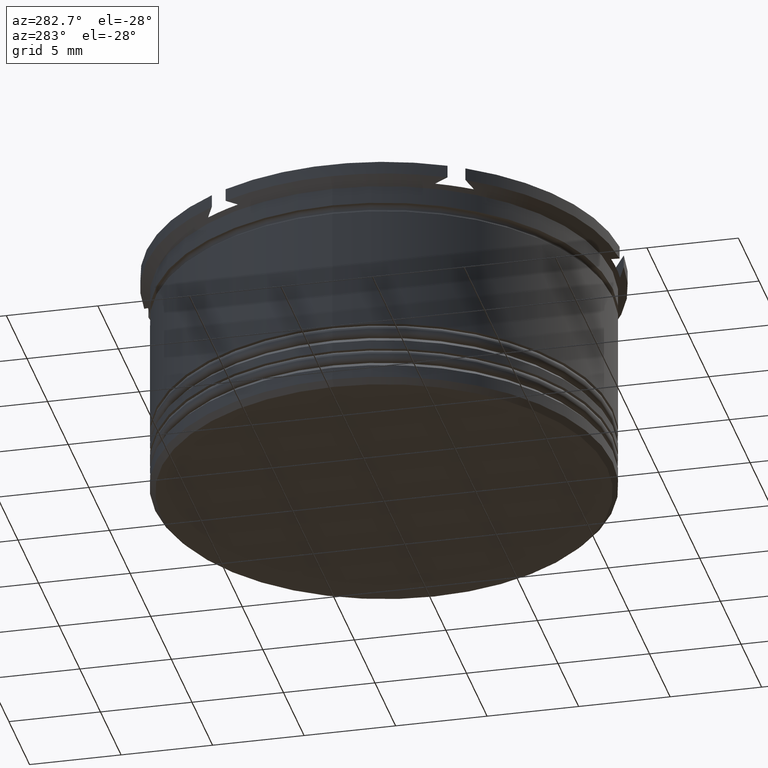
[diagram: clean part render]
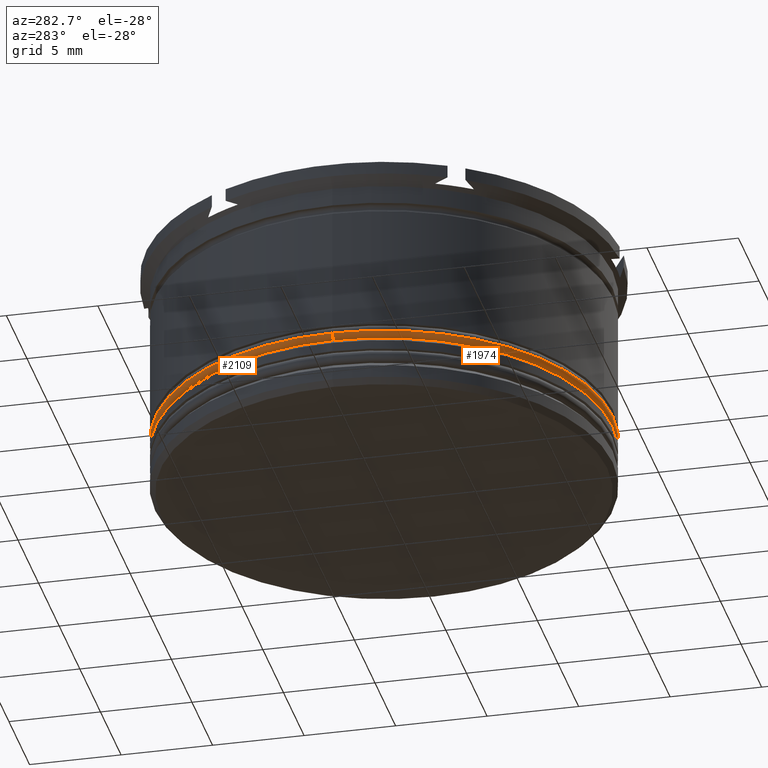
[diagram: same view with one multi-face feature highlighted, each face labeled with its STEP entity id]
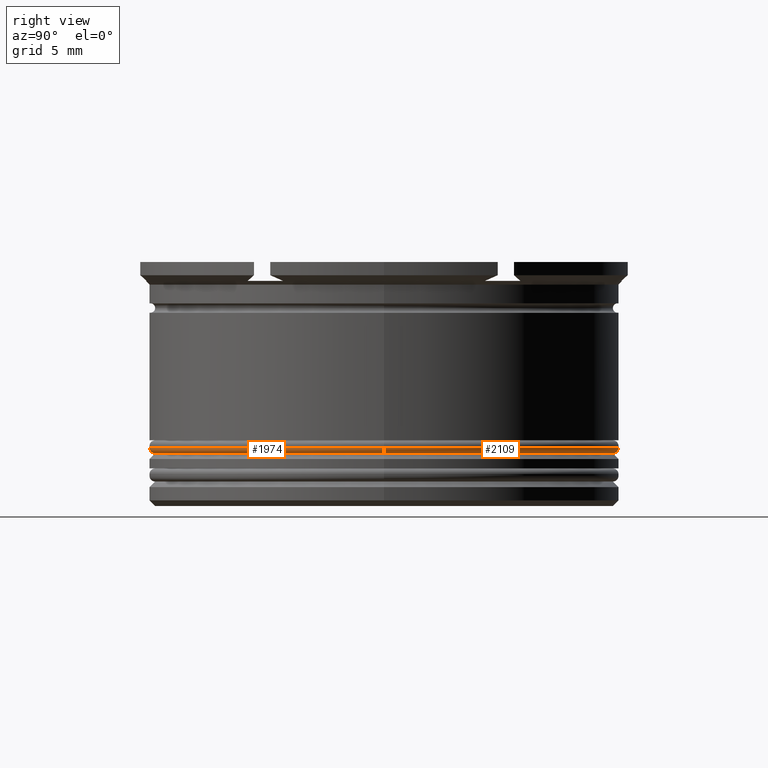
[diagram: same view with one multi-face feature highlighted, each face labeled with its STEP entity id]
A machine part, auxiliary view. The highlighted faces form ONE feature: a constant-radius fillet chain: 2 tangent blend faces with common blend radius 0.3 mm. The faces share edges in the B-rep.
A second angle (right view) of the same feature is appended — it is thin or edge-on in the first view.
Their STEP definitions:
[1] entity #1974 (Torus):
#22 = VERTEX_POINT ( 'NONE', #798 ) ;
#86 = EDGE_CURVE ( 'NONE', #2276, #1643, #122, .T. ) ;
#113 = DIRECTION ( 'NONE',  ( 1.224646799147353207E-16, 1.000000000000000000, -0.000000000000000000 ) ) ;
#122 = CIRCLE ( 'NONE', #1466, 0.2999999999999999334 ) ;
#224 = EDGE_CURVE ( 'NONE', #2276, #22, #353, .T. ) ;
#272 = CARTESIAN_POINT ( 'NONE',  ( 0.000000000000000000, 0.000000000000000000, -10.20000000000000817 ) ) ;
#353 = CIRCLE ( 'NONE', #2012, 12.20000000000000107 ) ;
#400 = EDGE_CURVE ( 'NONE', #536, #1643, #1593, .T. ) ;
#455 = DIRECTION ( 'NONE',  ( 1.000000000000000000, 0.000000000000000000, 0.000000000000000000 ) ) ;
#470 = ORIENTED_EDGE ( 'NONE', *, *, #489, .F. ) ;
#489 = EDGE_CURVE ( 'NONE', #22, #536, #1512, .T. ) ;
#512 = AXIS2_PLACEMENT_3D ( 'NONE', #1986, #113, #853 ) ;
#536 = VERTEX_POINT ( 'NONE', #1649 ) ;
#537 = DIRECTION ( 'NONE',  ( 0.000000000000000000, 0.000000000000000000, -1.000000000000000000 ) ) ;
#556 = FACE_OUTER_BOUND ( 'NONE', #2059, .T. ) ;
#621 = ORIENTED_EDGE ( 'NONE', *, *, #86, .T. ) ;
#701 = CARTESIAN_POINT ( 'NONE',  ( 12.20000000000000107, 0.000000000000000000, -10.20000000000000817 ) ) ;
#770 = DIRECTION ( 'NONE',  ( 0.000000000000000000, 0.000000000000000000, 1.000000000000000000 ) ) ;
#798 = CARTESIAN_POINT ( 'NONE',  ( -12.20000000000000107, 1.512438796946981289E-15, -10.20000000000000817 ) ) ;
#853 = DIRECTION ( 'NONE',  ( -1.000000000000000000, 1.224646799147353207E-16, 0.000000000000000000 ) ) ;
#916 = CARTESIAN_POINT ( 'NONE',  ( 12.20000000000000107, 0.000000000000000000, -9.900000000000005684 ) ) ;
#1032 = CARTESIAN_POINT ( 'NONE',  ( 12.50000000000000000, 0.000000000000000000, -9.900000000000005684 ) ) ;
#1173 = DIRECTION ( 'NONE',  ( -0.000000000000000000, -0.000000000000000000, -1.000000000000000000 ) ) ;
#1223 = CARTESIAN_POINT ( 'NONE',  ( 0.000000000000000000, 0.000000000000000000, -9.900000000000005684 ) ) ;
#1231 = DIRECTION ( 'NONE',  ( 0.000000000000000000, 0.000000000000000000, 1.000000000000000000 ) ) ;
#1281 = AXIS2_PLACEMENT_3D ( 'NONE', #1693, #770, #2230 ) ;
#1325 = ORIENTED_EDGE ( 'NONE', *, *, #224, .F. ) ;
#1466 = AXIS2_PLACEMENT_3D ( 'NONE', #916, #2186, #537 ) ;
#1512 = CIRCLE ( 'NONE', #512, 0.2999999999999999334 ) ;
#1593 = CIRCLE ( 'NONE', #2283, 12.50000000000000000 ) ;
#1632 = TOROIDAL_SURFACE ( 'NONE', #1281, 12.20000000000000107, 0.2999999999999999889 ) ;
#1643 = VERTEX_POINT ( 'NONE', #1032 ) ;
#1649 = CARTESIAN_POINT ( 'NONE',  ( -12.50000000000000000, 1.530808498934191521E-15, -9.900000000000005684 ) ) ;
#1693 = CARTESIAN_POINT ( 'NONE',  ( 0.000000000000000000, 0.000000000000000000, -9.900000000000005684 ) ) ;
#1966 = DIRECTION ( 'NONE',  ( 1.000000000000000000, 0.000000000000000000, 0.000000000000000000 ) ) ;
#1974 = ADVANCED_FACE ( 'NONE', ( #556 ), #1632, .T. ) ;
#1986 = CARTESIAN_POINT ( 'NONE',  ( -12.20000000000000107, 1.494069094959771056E-15, -9.900000000000005684 ) ) ;
#2012 = AXIS2_PLACEMENT_3D ( 'NONE', #272, #1173, #455 ) ;
#2059 = EDGE_LOOP ( 'NONE', ( #470, #1325, #621, #2358 ) ) ;
#2186 = DIRECTION ( 'NONE',  ( 0.000000000000000000, -1.000000000000000000, 0.000000000000000000 ) ) ;
#2230 = DIRECTION ( 'NONE',  ( 1.000000000000000000, 0.000000000000000000, 0.000000000000000000 ) ) ;
#2276 = VERTEX_POINT ( 'NONE', #701 ) ;
#2283 = AXIS2_PLACEMENT_3D ( 'NONE', #1223, #1231, #1966 ) ;
#2358 = ORIENTED_EDGE ( 'NONE', *, *, #400, .F. ) ;
[2] entity #2109 (Torus):
#22 = VERTEX_POINT ( 'NONE', #798 ) ;
#86 = EDGE_CURVE ( 'NONE', #2276, #1643, #122, .T. ) ;
#113 = DIRECTION ( 'NONE',  ( 1.224646799147353207E-16, 1.000000000000000000, -0.000000000000000000 ) ) ;
#122 = CIRCLE ( 'NONE', #1466, 0.2999999999999999334 ) ;
#129 = AXIS2_PLACEMENT_3D ( 'NONE', #1547, #452, #1525 ) ;
#313 = CARTESIAN_POINT ( 'NONE',  ( 0.000000000000000000, 0.000000000000000000, -10.20000000000000817 ) ) ;
#452 = DIRECTION ( 'NONE',  ( 0.000000000000000000, 0.000000000000000000, 1.000000000000000000 ) ) ;
#489 = EDGE_CURVE ( 'NONE', #22, #536, #1512, .T. ) ;
#512 = AXIS2_PLACEMENT_3D ( 'NONE', #1986, #113, #853 ) ;
#536 = VERTEX_POINT ( 'NONE', #1649 ) ;
#537 = DIRECTION ( 'NONE',  ( 0.000000000000000000, 0.000000000000000000, -1.000000000000000000 ) ) ;
#559 = ORIENTED_EDGE ( 'NONE', *, *, #661, .F. ) ;
#589 = FACE_OUTER_BOUND ( 'NONE', #1428, .T. ) ;
#661 = EDGE_CURVE ( 'NONE', #1643, #536, #1860, .T. ) ;
#701 = CARTESIAN_POINT ( 'NONE',  ( 12.20000000000000107, 0.000000000000000000, -10.20000000000000817 ) ) ;
#750 = AXIS2_PLACEMENT_3D ( 'NONE', #1529, #1886, #2098 ) ;
#798 = CARTESIAN_POINT ( 'NONE',  ( -12.20000000000000107, 1.512438796946981289E-15, -10.20000000000000817 ) ) ;
#849 = DIRECTION ( 'NONE',  ( 1.000000000000000000, 0.000000000000000000, 0.000000000000000000 ) ) ;
#853 = DIRECTION ( 'NONE',  ( -1.000000000000000000, 1.224646799147353207E-16, 0.000000000000000000 ) ) ;
#916 = CARTESIAN_POINT ( 'NONE',  ( 12.20000000000000107, 0.000000000000000000, -9.900000000000005684 ) ) ;
#1032 = CARTESIAN_POINT ( 'NONE',  ( 12.50000000000000000, 0.000000000000000000, -9.900000000000005684 ) ) ;
#1218 = DIRECTION ( 'NONE',  ( -0.000000000000000000, -0.000000000000000000, -1.000000000000000000 ) ) ;
#1273 = ORIENTED_EDGE ( 'NONE', *, *, #86, .F. ) ;
#1347 = ORIENTED_EDGE ( 'NONE', *, *, #489, .T. ) ;
#1428 = EDGE_LOOP ( 'NONE', ( #1587, #1347, #559, #1273 ) ) ;
#1466 = AXIS2_PLACEMENT_3D ( 'NONE', #916, #2186, #537 ) ;
#1512 = CIRCLE ( 'NONE', #512, 0.2999999999999999334 ) ;
#1525 = DIRECTION ( 'NONE',  ( 1.000000000000000000, 0.000000000000000000, 0.000000000000000000 ) ) ;
#1529 = CARTESIAN_POINT ( 'NONE',  ( 0.000000000000000000, 0.000000000000000000, -9.900000000000005684 ) ) ;
#1547 = CARTESIAN_POINT ( 'NONE',  ( 0.000000000000000000, 0.000000000000000000, -9.900000000000005684 ) ) ;
#1553 = AXIS2_PLACEMENT_3D ( 'NONE', #313, #1218, #849 ) ;
#1587 = ORIENTED_EDGE ( 'NONE', *, *, #1620, .F. ) ;
#1597 = TOROIDAL_SURFACE ( 'NONE', #750, 12.20000000000000107, 0.2999999999999999889 ) ;
#1620 = EDGE_CURVE ( 'NONE', #22, #2276, #2204, .T. ) ;
#1643 = VERTEX_POINT ( 'NONE', #1032 ) ;
#1649 = CARTESIAN_POINT ( 'NONE',  ( -12.50000000000000000, 1.530808498934191521E-15, -9.900000000000005684 ) ) ;
#1860 = CIRCLE ( 'NONE', #129, 12.50000000000000000 ) ;
#1886 = DIRECTION ( 'NONE',  ( 0.000000000000000000, 0.000000000000000000, 1.000000000000000000 ) ) ;
#1986 = CARTESIAN_POINT ( 'NONE',  ( -12.20000000000000107, 1.494069094959771056E-15, -9.900000000000005684 ) ) ;
#2098 = DIRECTION ( 'NONE',  ( 1.000000000000000000, 0.000000000000000000, 0.000000000000000000 ) ) ;
#2109 = ADVANCED_FACE ( 'NONE', ( #589 ), #1597, .T. ) ;
#2186 = DIRECTION ( 'NONE',  ( 0.000000000000000000, -1.000000000000000000, 0.000000000000000000 ) ) ;
#2204 = CIRCLE ( 'NONE', #1553, 12.20000000000000107 ) ;
#2276 = VERTEX_POINT ( 'NONE', #701 ) ;